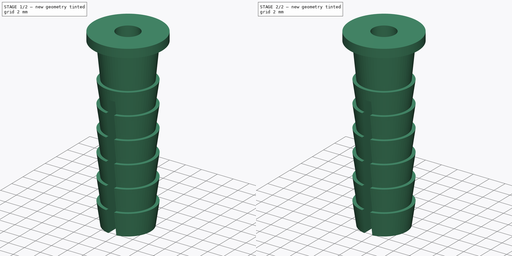
[diagram: build sequence overview — one tinted view per stage of 2, left to right]
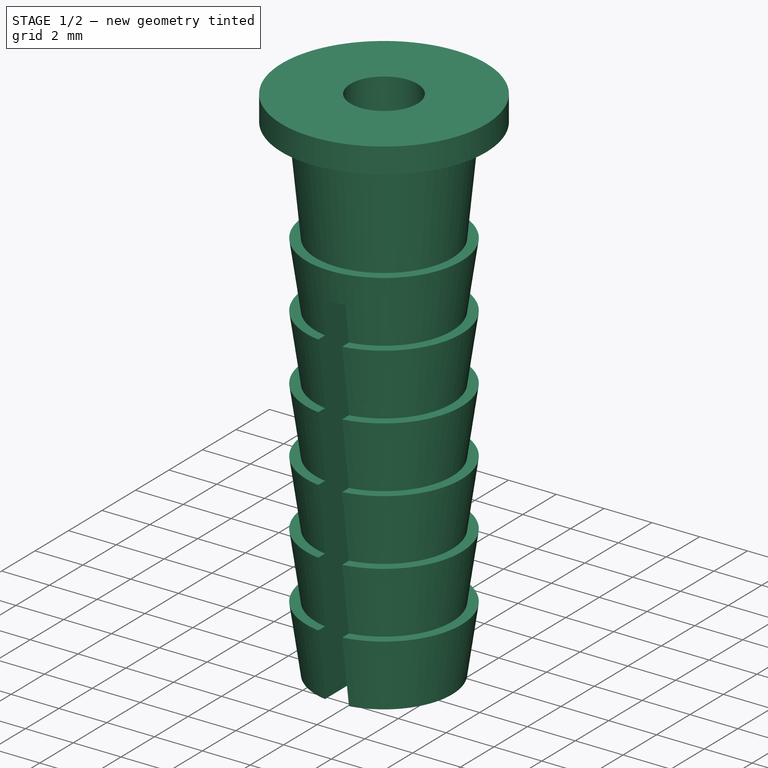
[diagram: stage 1 of 2 — iso view after this stage's code; geometry added in this stage tinted green]
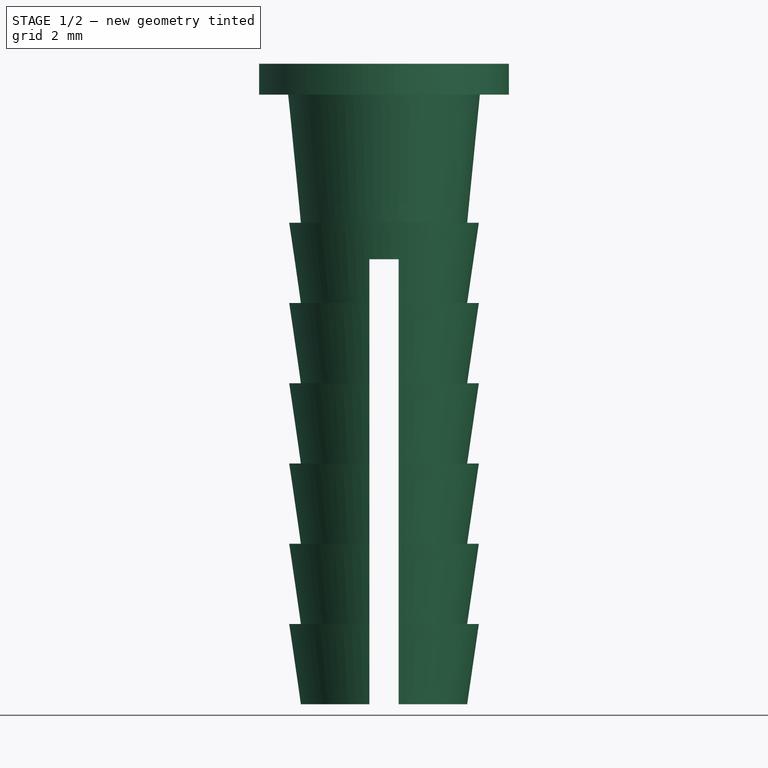
[diagram: stage 1 of 2 — front view after this stage's code; geometry added in this stage tinted green]
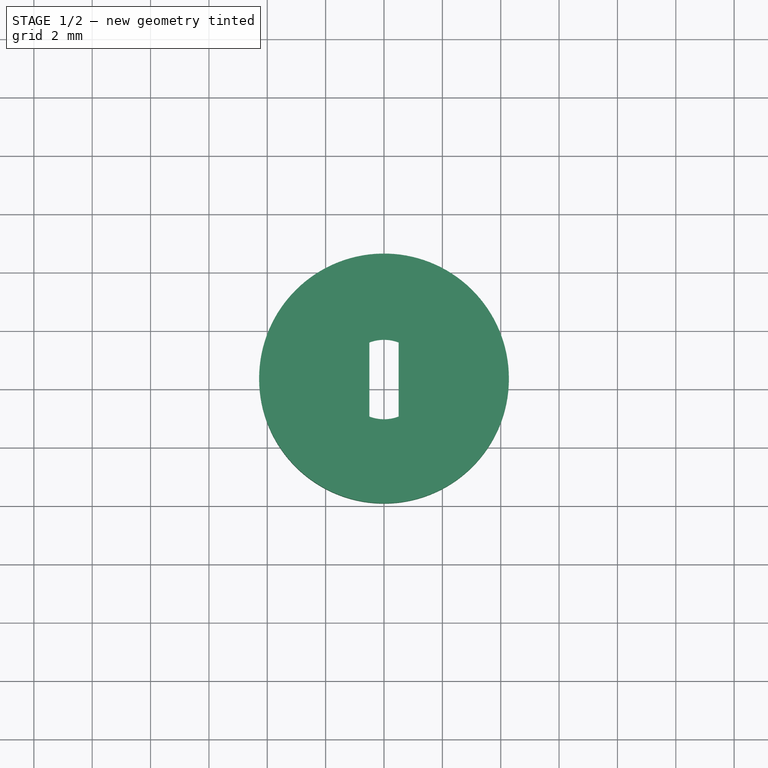
[diagram: stage 1 of 2 — top view after this stage's code; geometry added in this stage tinted green]
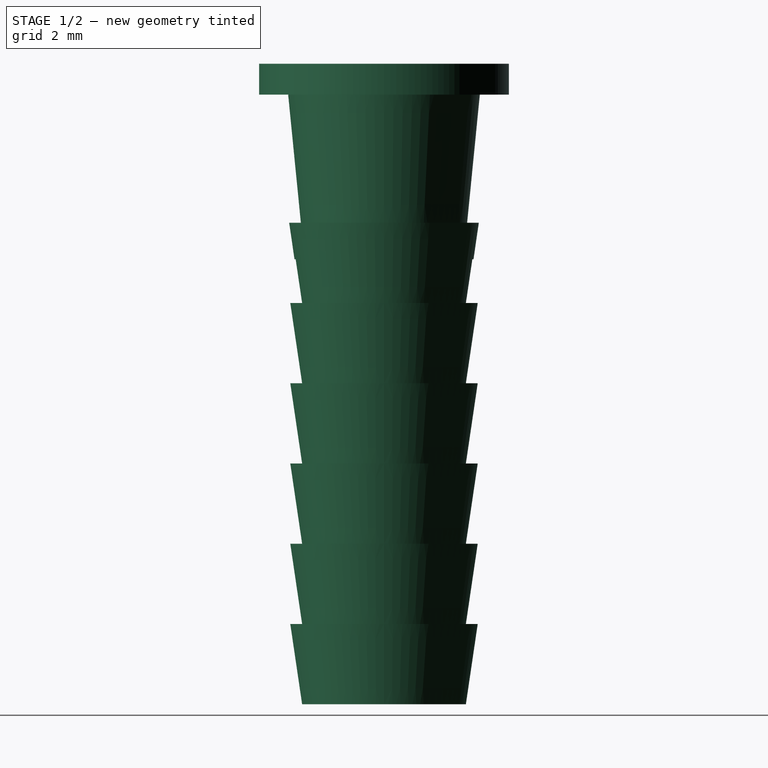
[diagram: stage 1 of 2 — right view after this stage's code; geometry added in this stage tinted green]
FCSTD DOCUMENT  (FreeCAD 0.16R6703 (Git))
Label: Taco_nylon
License: CreativeCommons Attribution-ShareAlike
LicenseURL: http://creativecommons.org/licenses/by-sa/4.0/
objects: Sketcher::SketchObject×2, PartDesign::Revolution×1, PartDesign::Pocket×1, Part::MultiCommon×1
note: 7 computed .brp shape members not serialized (recipe doc carries the construction recipe); baked Part::Feature solids carry a one-line shape summary decoded from their .brp

FEATURE [Sketcher::SketchObject] Sketch
  Placement = pos=(0,0,0) rot=(1,0,0;1.5708rad)
  sketch-geometry (24):
    g0: LineSegment StartX=0 StartY=-6.75 StartZ=0 EndX=1.575 EndY=-6.75 EndZ=0
    g1: LineSegment StartX=1.4 StartY=0 StartZ=0 EndX=4.28 EndY=0 EndZ=0
    g2: LineSegment StartX=4.28 StartY=0 StartZ=0 EndX=4.28 EndY=-1.06 EndZ=0
    g3: LineSegment StartX=4.28 StartY=-1.06 StartZ=0 EndX=3.285 EndY=-1.06 EndZ=0
    g4: LineSegment StartX=3.285 StartY=-1.06 StartZ=0 EndX=2.85 EndY=-5.45 EndZ=0
    g5: LineSegment StartX=2.85 StartY=-5.45 StartZ=0 EndX=3.25 EndY=-5.45 EndZ=0
    g6: LineSegment StartX=3.25 StartY=-5.45 StartZ=0 EndX=2.85 EndY=-8.2 EndZ=0
    g7: LineSegment StartX=2.85 StartY=-8.2 StartZ=0 EndX=3.25 EndY=-8.2 EndZ=0
    g8: LineSegment StartX=3.25 StartY=-8.2 StartZ=0 EndX=2.85 EndY=-10.95 EndZ=0
    g9: LineSegment StartX=2.85 StartY=-10.95 StartZ=0 EndX=3.25 EndY=-10.95 EndZ=0
    g10: LineSegment StartX=3.25 StartY=-10.95 StartZ=0 EndX=2.85 EndY=-13.7 EndZ=0
    g11: LineSegment StartX=2.85 StartY=-13.7 StartZ=0 EndX=3.25 EndY=-13.7 EndZ=0
    g12: LineSegment StartX=3.25 StartY=-13.7 StartZ=0 EndX=2.85 EndY=-16.45 EndZ=0
    g13: LineSegment StartX=2.85 StartY=-19.2 StartZ=0 EndX=3.25 EndY=-19.2 EndZ=0
    g14: LineSegment StartX=3.25 StartY=-19.2 StartZ=0 EndX=2.85 EndY=-21.95 EndZ=0
    g15: LineSegment StartX=2.85 StartY=-21.95 StartZ=0 EndX=0 EndY=-21.95 EndZ=0
    g16: LineSegment StartX=0 StartY=-6.75 StartZ=0 EndX=0 EndY=-21.95 EndZ=0
    g17: LineSegment StartX=2.85 StartY=-16.45 StartZ=0 EndX=3.25 EndY=-16.45 EndZ=0
    g18: LineSegment StartX=2.85 StartY=-19.2 StartZ=0 EndX=3.25 EndY=-16.45 EndZ=0
    g19: LineSegment StartX=1.575 StartY=-6.75 StartZ=0 EndX=1.4 EndY=-4.5 EndZ=0
    g20: LineSegment StartX=1.4 StartY=-4.5 StartZ=0 EndX=1.575 EndY=-4.5 EndZ=0
    g21: LineSegment StartX=1.575 StartY=-4.5 StartZ=0 EndX=1.4 EndY=-2.25 EndZ=0
    g22: LineSegment StartX=1.4 StartY=-2.25 StartZ=0 EndX=1.575 EndY=-2.25 EndZ=0
    g23: LineSegment StartX=1.575 StartY=-2.25 StartZ=0 EndX=1.4 EndY=0 EndZ=0
  constraints (72):
    c: PointOnObject(g0,g-2)
    c: Horizontal(g0)
    c: Horizontal(g1)
    c: Coincident(g1,g2)
    c: Vertical(g2)
    c: Coincident(g2,g3)
    c: Horizontal(g3)
    c: Coincident(g3,g4)
    c: Coincident(g4,g5)
    c: Horizontal(g5)
    c: Coincident(g5,g6)
    c: Coincident(g6,g7)
    c: Horizontal(g7)
    c: Coincident(g7,g8)
    c: Coincident(g8,g9)
    c: Horizontal(g9)
    c: Coincident(g9,g10)
    c: Coincident(g10,g11)
    c: Horizontal(g11)
    c: Coincident(g11,g12)
    c: Horizontal(g13)
    c: Coincident(g13,g14)
    c: Coincident(g14,g15)
    c: PointOnObject(g15,g-2)
    c: Horizontal(g15)
    c: Coincident(g16,g0)
    c: Coincident(g16,g15)
    c: Equal(g11,g9)
    c: Equal(g9,g7)
    c: Equal(g7,g5)
    c: DistanceY(g2,g2) = 1.06
    c: DistanceX(g-1,g1) = 4.28
    c: DistanceX(g-1,g3) = 3.285
    c: Equal(g6,g8)
    c: Equal(g8,g10)
    c: Equal(g10,g12)
    c: Coincident(g17,g12)
    c: Horizontal(g17)
    c: Coincident(g18,g13)
    c: Coincident(g18,g17)
    c: Equal(g11,g17)
    c: Equal(g17,g13)
    c: Equal(g12,g18)
    c: Equal(g18,g14)
    c: Coincident(g0,g19)
    c: Coincident(g19,g20)
    c: Horizontal(g20)
    c: Coincident(g20,g21)
    c: Coincident(g21,g22)
    c: Horizontal(g22)
    c: Coincident(g22,g23)
    c: Coincident(g23,g1)
    c: DistanceY(g14,g14) = 2.75
    c: DistanceX(g13,g13) = 0.4
    c: DistanceX(g15,g15) = 2.85
    c: DistanceX(g-1,g13) = 2.85
    c: DistanceX(g-1,g12) = 2.85
    c: DistanceX(g-1,g10) = 2.85
    c: DistanceX(g-1,g8) = 2.85
    c: DistanceX(g-1,g6) = 2.85
    c: DistanceX(g-1,g4) = 2.85
    c: DistanceX(g-1,g0) = 1.575
    c: DistanceX(g-1,g20) = 1.575
    c: DistanceX(g-1,g22) = 1.575
    c: DistanceX(g-1,g1) = 1.4
    c: DistanceX(g-1,g21) = 1.4
    c: DistanceX(g-1,g19) = 1.4
    c: Equal(g19,g21)
    c: Equal(g21,g23)
    c: DistanceY(g16,g16) = 15.2
    c: DistanceY(g5,g1) = 5.45
    c: PointOnObject(g1,g-1)
FEATURE [PartDesign::Revolution] Revolution
  Angle = 360
  Axis = (0,0,1)
  Base = (0,0,0)
  Placement = pos=(0,0,0) rot=(1,0,0;1.5708rad)
  ReferenceAxis = -> Sketch [V_Axis]
  Reversed = true
  Sketch = -> Sketch
FEATURE [Sketcher::SketchObject] Sketch001
  ExternalGeometry = -> [Revolution]
  Placement = pos=(0,0,-21.95) rot=(1,0,0;3.14159rad)
  Support = -> Revolution [Face3]
  sketch-geometry (4):
    g0: LineSegment StartX=-0.5 StartY=4.28 StartZ=0 EndX=0.5 EndY=4.28 EndZ=0
    g1: LineSegment StartX=0.5 StartY=4.28 StartZ=0 EndX=0.5 EndY=-4.28 EndZ=0
    g2: LineSegment StartX=0.5 StartY=-4.28 StartZ=0 EndX=-0.5 EndY=-4.28 EndZ=0
    g3: LineSegment StartX=-0.5 StartY=-4.28 StartZ=0 EndX=-0.5 EndY=4.28 EndZ=0
  constraints (12):
    c: Coincident(g0,g1)
    c: Coincident(g1,g2)
    c: Coincident(g2,g3)
    c: Coincident(g3,g0)
    c: Horizontal(g0)
    c: Horizontal(g2)
    c: Vertical(g1)
    c: Vertical(g3)
    c: Symmetric(g0,g1,g-1)
    c: Symmetric(g0,g0,g-2)
    c: DistanceX(g0,g0) = 1
    c: Tangent(g2,g-3)
FEATURE [PartDesign::Pocket] Pocket
  Length = 15.25
  Placement = pos=(0,0,0) rot=(1,0,0;1.5708rad)
  Sketch = -> Sketch001
  Type = 0
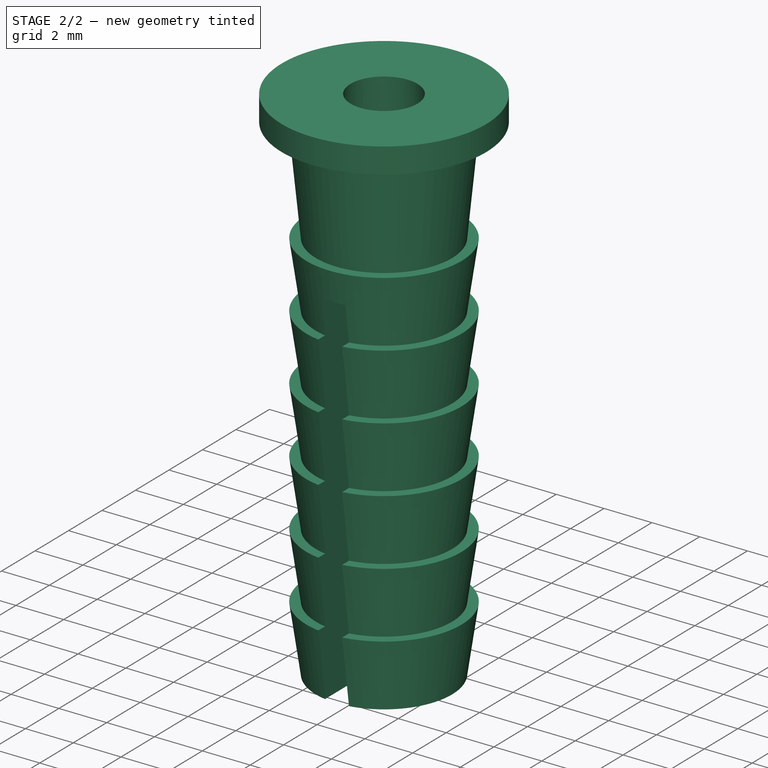
[diagram: stage 2 of 2 — iso view after this stage's code; geometry added in this stage tinted green]
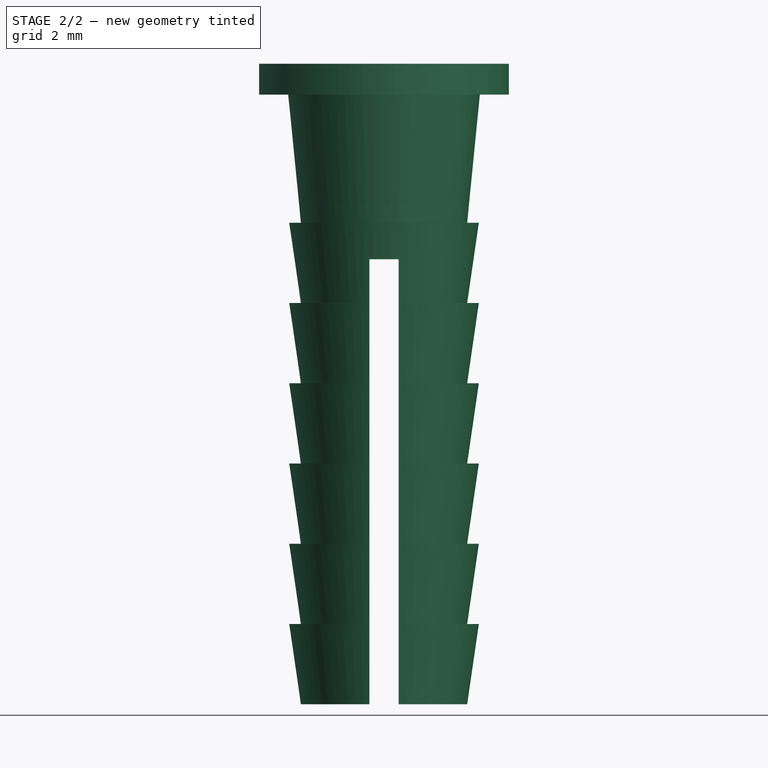
[diagram: stage 2 of 2 — front view after this stage's code; geometry added in this stage tinted green]
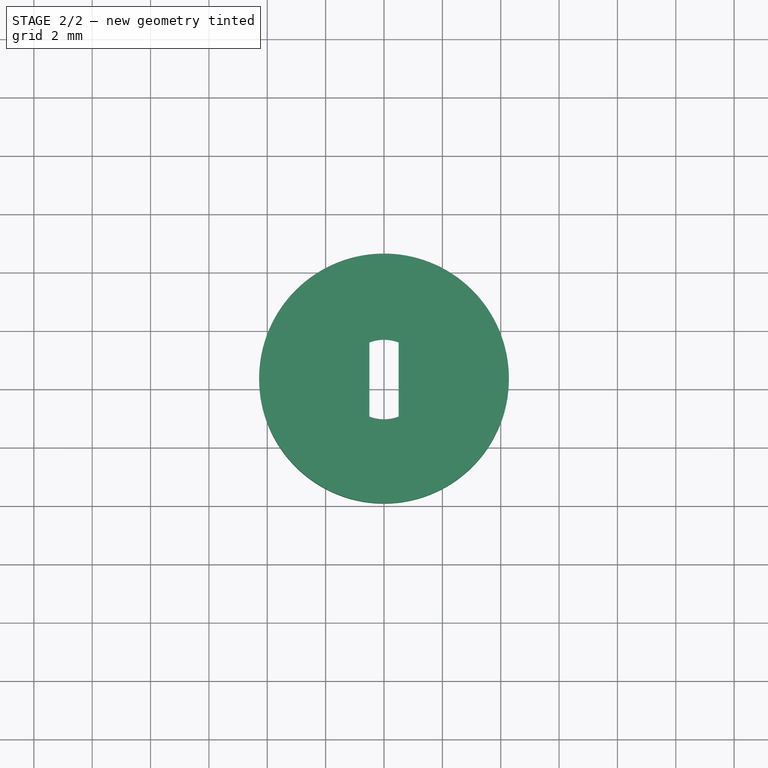
[diagram: stage 2 of 2 — top view after this stage's code; geometry added in this stage tinted green]
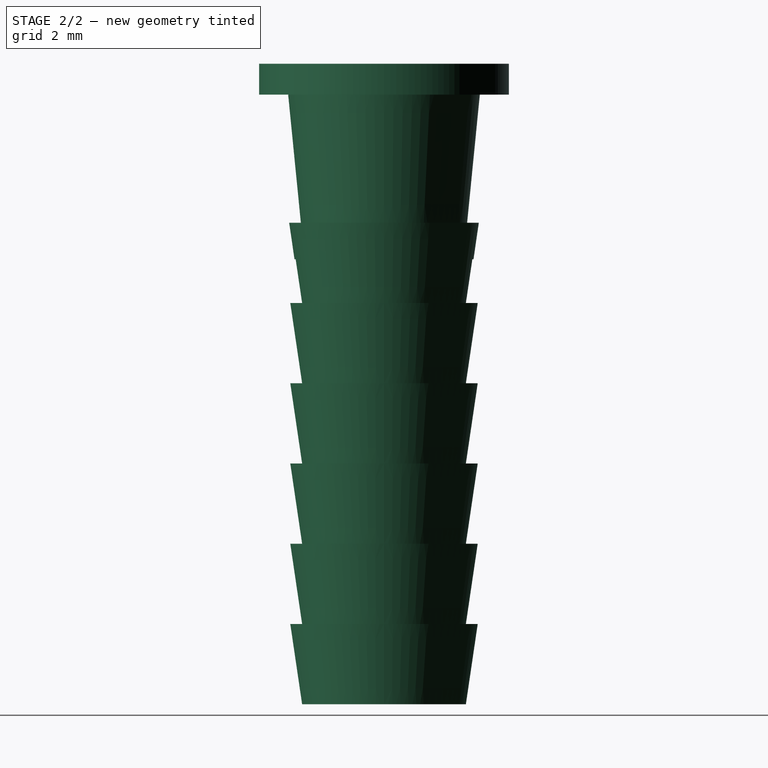
[diagram: stage 2 of 2 — right view after this stage's code; geometry added in this stage tinted green]
FEATURE [Part::MultiCommon] Common
  Shapes = -> [Pocket,Revolution]
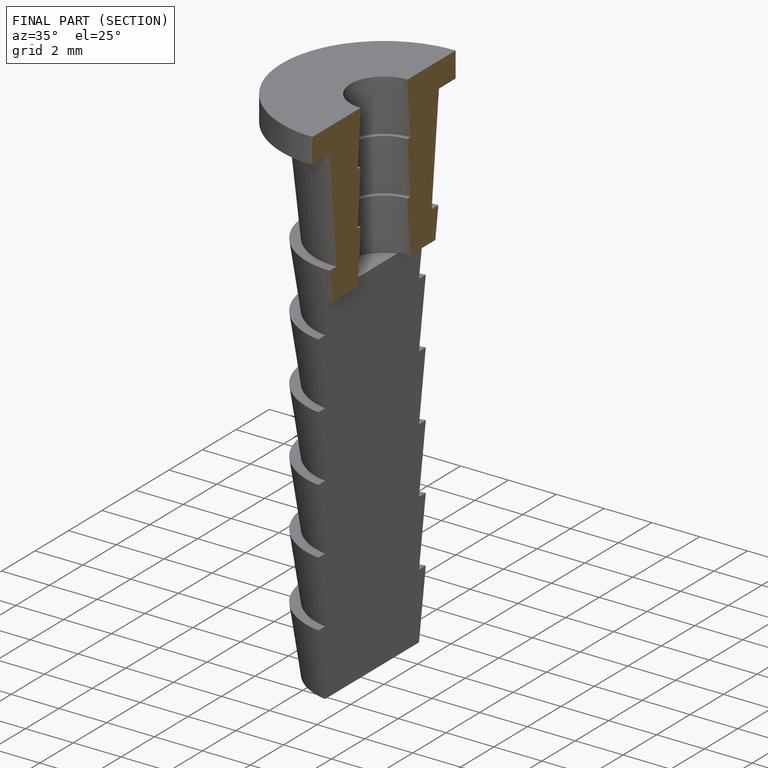
[diagram: finished part — half-section view (interior)]
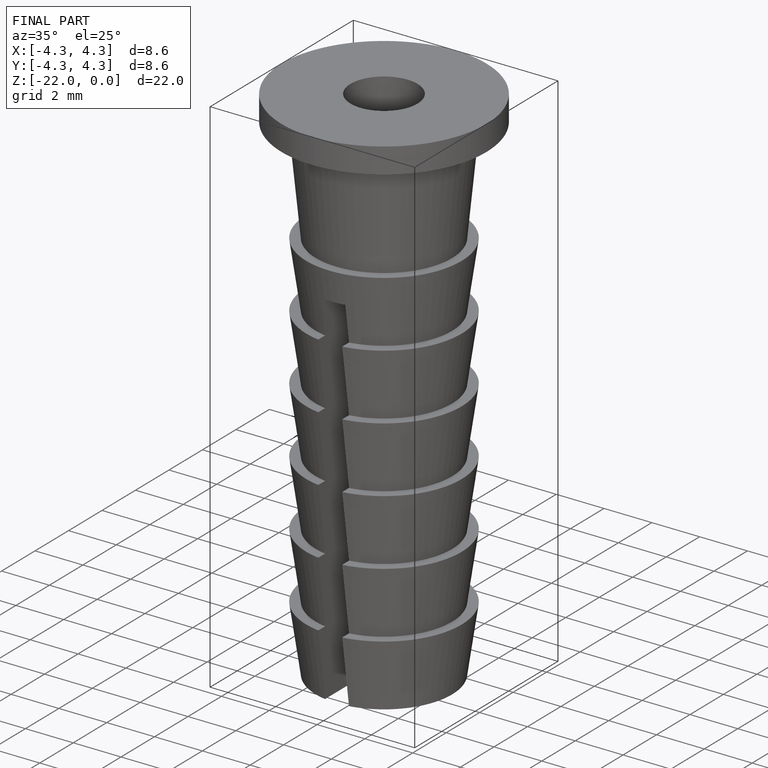
[diagram: finished part — iso view with bounding-box wireframe]
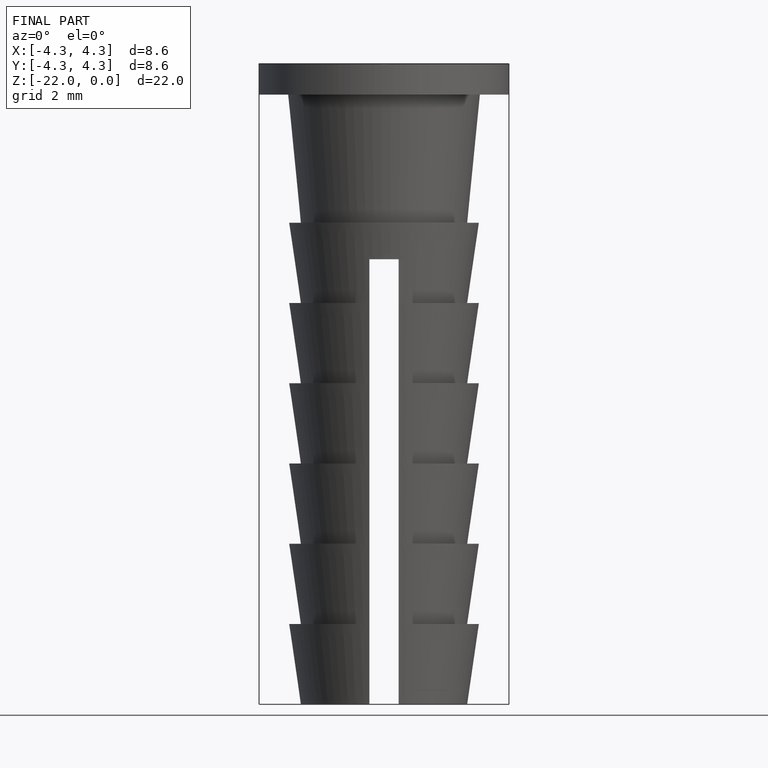
[diagram: finished part — front view with bounding-box wireframe]
